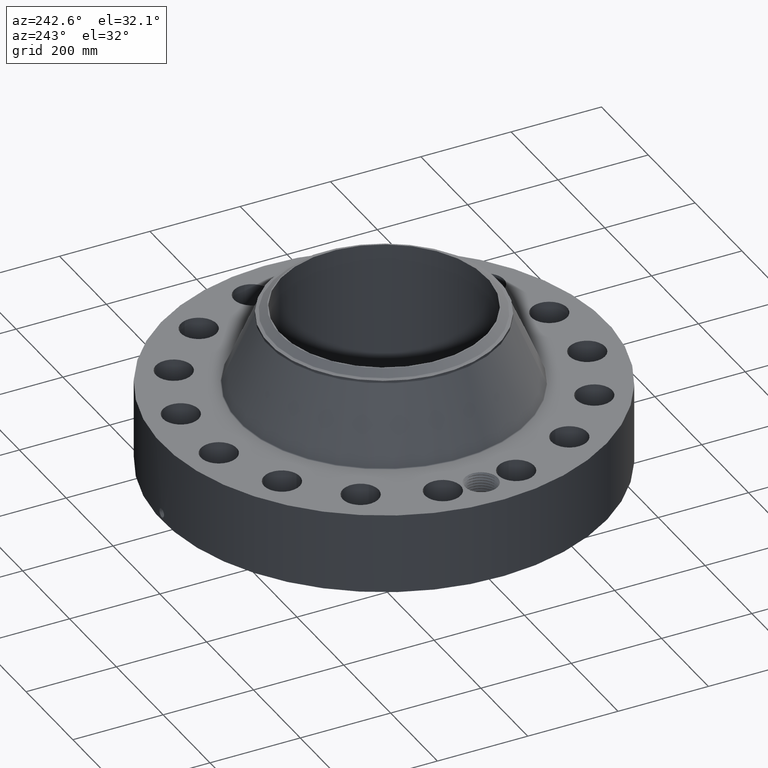
[diagram: clean part render]
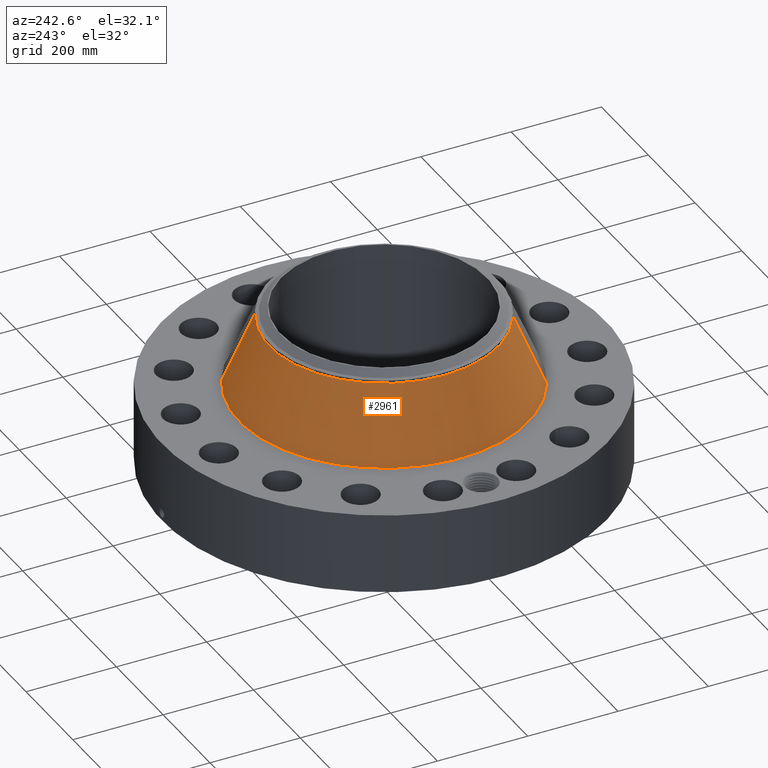
[diagram: same view with one face highlighted and labeled with its STEP entity id]
A machine part, auxiliary view. The second image highlights one B-rep face of the part: STEP entity #2961.
In plain terms, the highlighted conical surface has half-angle 22.946 deg.
Its self-contained STEP definition (entity closure, byte-faithful):
#2283=AXIS2_PLACEMENT_3D('Circle Axis2P3D',#2281,#2282,$) ;
#2922=AXIS2_PLACEMENT_3D('Cone Axis2P3D',#2919,#2920,#2921) ;
#2952=AXIS2_PLACEMENT_3D('Circle Axis2P3D',#2950,#2951,$) ;
#2259=CARTESIAN_POINT('Vertex',(6.03788658174,11.052277253,7.32321617379)) ;
#2266=CARTESIAN_POINT('Vertex',(-6.03788658174,-11.052277253,7.32321617379)) ;
#2281=CARTESIAN_POINT('Axis2P3D Location',(0.,0.,7.32321617379)) ;
#2919=CARTESIAN_POINT('Axis2P3D Location',(0.,0.,13.4503192388)) ;
#2924=CARTESIAN_POINT('Line Origine',(5.4160709839,9.91405143595,10.3867677063)) ;
#2928=CARTESIAN_POINT('Vertex',(4.79425538606,8.77582561894,13.4503192388)) ;
#2935=CARTESIAN_POINT('Vertex',(-4.79425538606,-8.77582561894,13.4503192388)) ;
#2938=CARTESIAN_POINT('Line Origine',(-5.4160709839,-9.91405143595,10.3867677063)) ;
#2950=CARTESIAN_POINT('Axis2P3D Location',(0.,0.,13.4503192388)) ;
#2282=DIRECTION('Axis2P3D Direction',(0.,0.,-0.0393700787402)) ;
#2920=DIRECTION('Axis2P3D Direction',(0.,0.,-0.0393700787402)) ;
#2921=DIRECTION('Axis2P3D XDirection',(-0.0188750212049,-0.0345504945626,0.)) ;
#2925=DIRECTION('Vector Direction',(0.00735871426984,0.0134700361185,-0.0362548003893)) ;
#2939=DIRECTION('Vector Direction',(-0.00735871426984,-0.0134700361185,-0.0362548003893)) ;
#2951=DIRECTION('Axis2P3D Direction',(0.,0.,-0.0393700787402)) ;
#2926=VECTOR('Line Direction',#2925,0.0393700787402) ;
#2940=VECTOR('Line Direction',#2939,0.0393700787402) ;
#2956=ORIENTED_EDGE('',*,*,#2285,.F.) ;
#2957=ORIENTED_EDGE('',*,*,#2942,.T.) ;
#2958=ORIENTED_EDGE('',*,*,#2954,.T.) ;
#2959=ORIENTED_EDGE('',*,*,#2930,.F.) ;
#2961=ADVANCED_FACE('PartBody',(#2960),#2923,.T.) ;
#2284=CIRCLE('generated circle',#2283,12.5940028129) ;
#2953=CIRCLE('generated circle',#2952,10.) ;
#2923=CONICAL_SURFACE('Cone',#2922,10.,0.400485225458) ;
#2285=EDGE_CURVE('',#2267,#2260,#2284,.T.) ;
#2930=EDGE_CURVE('',#2260,#2929,#2927,.F.) ;
#2942=EDGE_CURVE('',#2267,#2936,#2941,.F.) ;
#2954=EDGE_CURVE('',#2936,#2929,#2953,.T.) ;
#2955=EDGE_LOOP('',(#2956,#2957,#2958,#2959)) ;
#2960=FACE_OUTER_BOUND('',#2955,.T.) ;
#2927=LINE('Line',#2924,#2926) ;
#2941=LINE('Line',#2938,#2940) ;
#2260=VERTEX_POINT('',#2259) ;
#2267=VERTEX_POINT('',#2266) ;
#2929=VERTEX_POINT('',#2928) ;
#2936=VERTEX_POINT('',#2935) ;